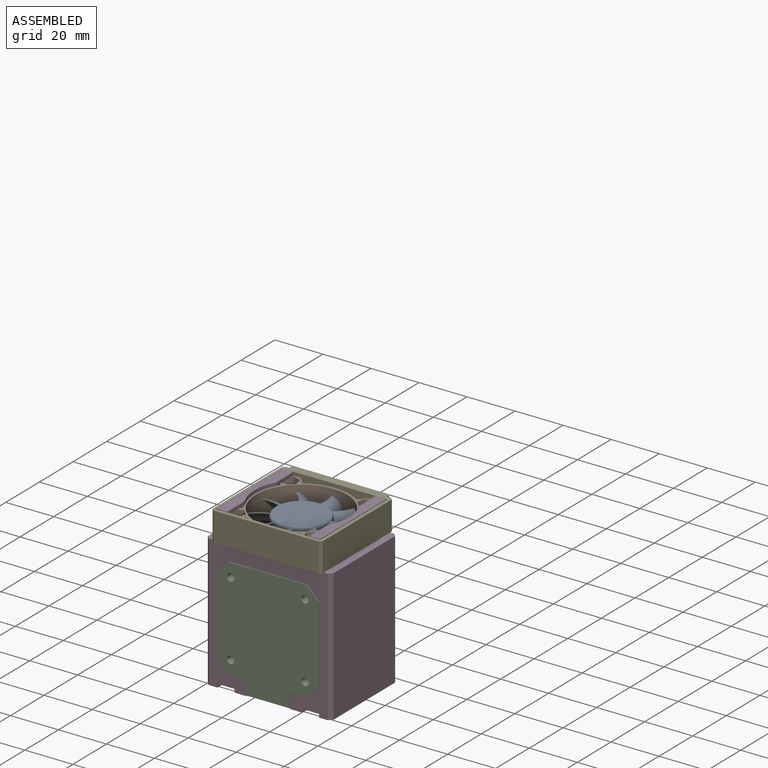
[diagram: assembled view]
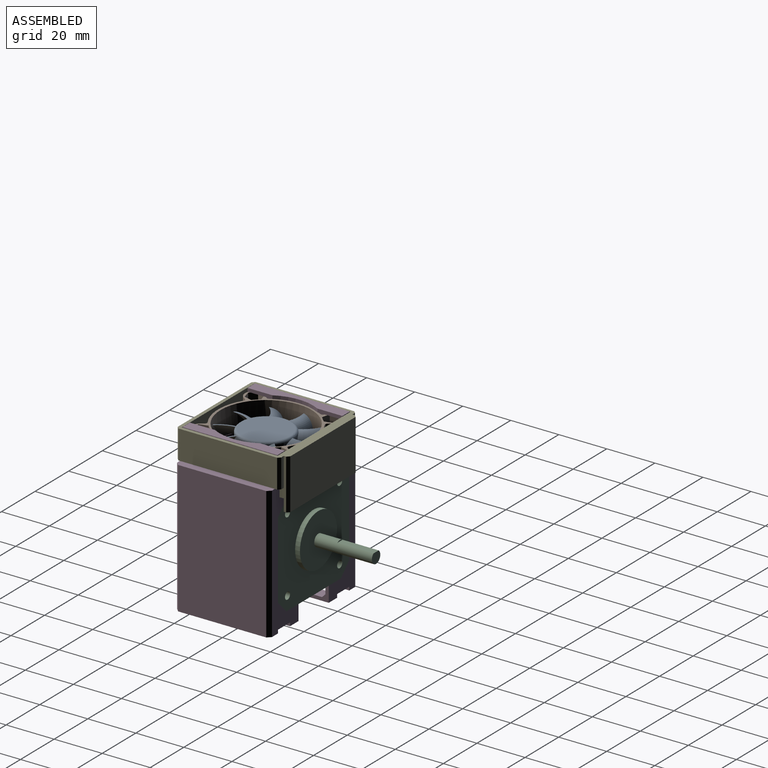
[diagram: assembled view, second angle]
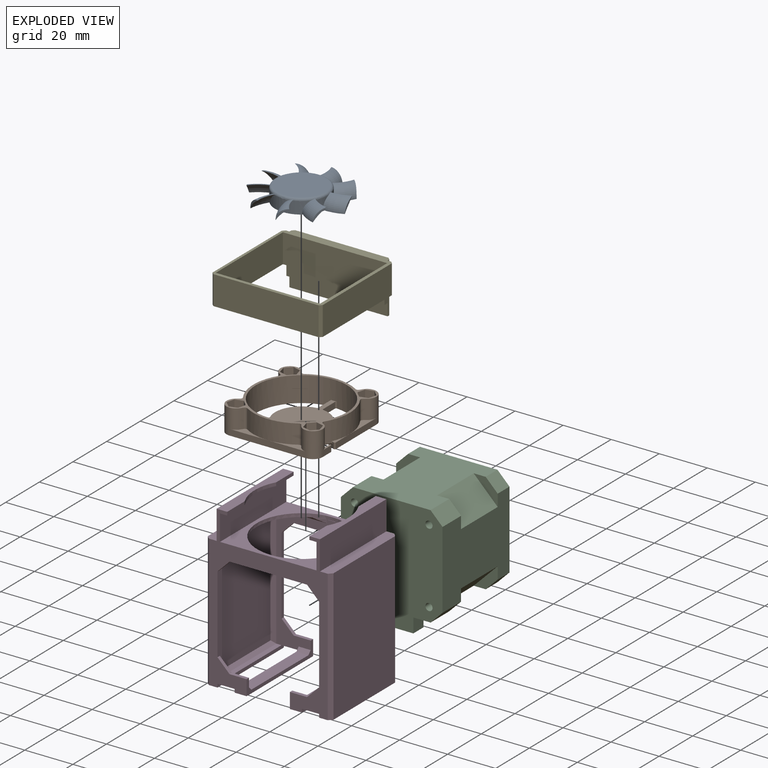
[diagram: exploded view]
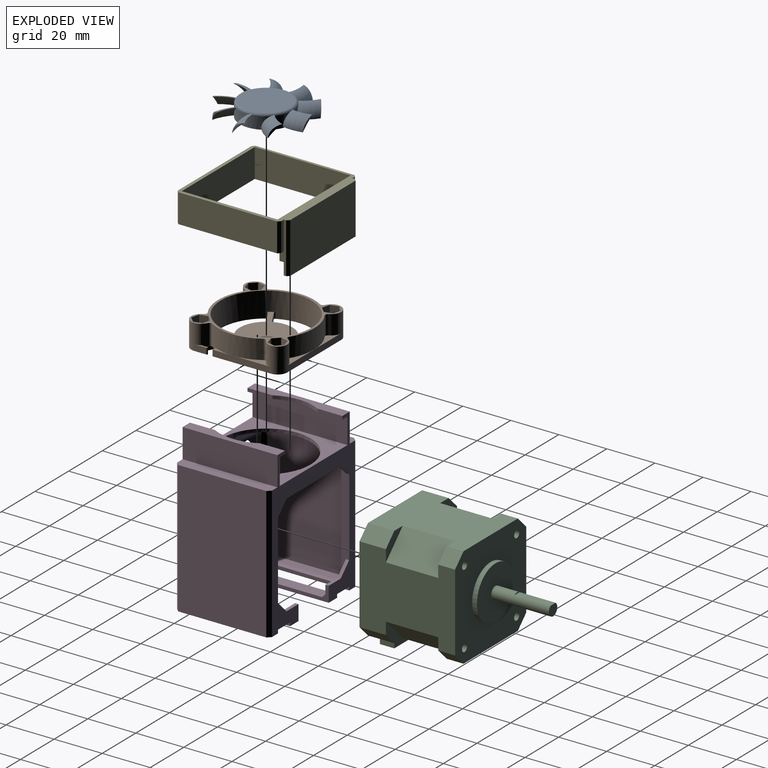
[diagram: exploded view, second angle]
ASSEMBLY  parts=5 mates=4
PART A: 32 faces, bbox 42.3x42.5x6 mm
  f0: cylinder r=11mm len=22mm, axis (0,0,-1), area 307.6mm2, adj f1,f3,f4,f5,f6,f8,f9,f11
  f1: cylinder r=11mm len=4.52mm, axis (0,0,-1), area 3.9mm2, adj f0,f4,f11
  f2: plane 20x20mm, normal (0,0,1), area 314.2mm2, adj f4
  f3: plane 22x22mm, normal (0,0,-1), area 380.1mm2, adj f0
  f4: torus R=10mm, axis (0,0,1), area 102.2mm2, adj f0,f1,f2,f5,f6,f8,f9,f11
  f5: torus R=12.73mm, axis (0,0,-1), area 60.3mm2, adj f0,f4,f6,f7
  f6: torus R=5.4mm, axis (0,0,-1), area 55.4mm2, adj f0,f4,f5,f7
  f7: cylinder r=18.8mm len=4.97mm, axis (0,0,1), area 4.5mm2, adj f5,f6
  f8: torus R=12.73mm, axis (0,0,-1), area 60.3mm2, adj f0,f4,f9,f10
  f9: torus R=5.4mm, axis (0,0,-1), area 55.4mm2, adj f0,f4,f8,f10
  f10: cylinder r=18.8mm len=4.97mm, axis (0,0,1), area 4.5mm2, adj f8,f9
  f11: torus R=12.73mm, axis (0,0,-1), area 60.3mm2, adj f0,f1,f4,f12,f13
  f12: torus R=5.4mm, axis (0,0,-1), area 55.4mm2, adj f0,f4,f11,f13
  f13: cylinder r=18.8mm len=4.97mm, axis (0,0,1), area 4.5mm2, adj f11,f12
  f14: torus R=12.73mm, axis (0,0,-1), area 60.3mm2, adj f0,f4,f15,f16
  f15: torus R=5.4mm, axis (0,0,-1), area 55.4mm2, adj f0,f4,f14,f16
  f16: cylinder r=18.8mm len=4.97mm, axis (0,0,1), area 4.5mm2, adj f14,f15
  f17: torus R=12.73mm, axis (0,0,-1), area 60.3mm2, adj f0,f4,f18,f19
  f18: torus R=5.4mm, axis (0,0,-1), area 55.4mm2, adj f0,f4,f17,f19
  f19: cylinder r=18.8mm len=4.97mm, axis (0,0,1), area 4.5mm2, adj f17,f18
  f20: torus R=12.73mm, axis (0,0,-1), area 60.3mm2, adj f0,f4,f21,f22
  f21: torus R=5.4mm, axis (0,0,-1), area 55.4mm2, adj f0,f4,f20,f22
  f22: cylinder r=18.8mm len=4.99mm, axis (0,0,1), area 4.5mm2, adj f20,f21
  f23: torus R=12.73mm, axis (0,0,-1), area 60.3mm2, adj f0,f4,f24,f25
  f24: torus R=5.4mm, axis (0,0,-1), area 55.4mm2, adj f0,f4,f23,f25
  f25: cylinder r=18.8mm len=4.97mm, axis (0,0,1), area 4.5mm2, adj f23,f24
  f26: torus R=12.73mm, axis (0,0,-1), area 60.3mm2, adj f0,f4,f27,f28
  f27: torus R=5.4mm, axis (0,0,-1), area 55.4mm2, adj f0,f4,f26,f28
  f28: cylinder r=18.8mm len=5mm, axis (0,0,1), area 4.5mm2, adj f26,f27
  f29: torus R=12.73mm, axis (0,0,-1), area 60.3mm2, adj f0,f4,f30,f31
  f30: torus R=5.4mm, axis (0,0,-1), area 55.4mm2, adj f0,f4,f29,f31
  f31: cylinder r=18.8mm len=4.97mm, axis (0,0,1), area 4.5mm2, adj f29,f30
PART B: 115 faces, bbox 40x40x10.5 mm
  f0: plane 10.28x5.94mm, normal (0.5,0.87,0), area 17.8mm2, adj f19,f33,f35,f80,f81,f82
  f1: plane 2.5x1.78mm, normal (-1,0,0), area 4.5mm2, adj f8,f33,f81,f97
  f2: plane 16x3.21mm, normal (0,0,1), area 18mm2, adj f26,f27,f56,f57,f100
  f3: plane 16x3.21mm, normal (0,0,1), area 18mm2, adj f25,f26,f65,f69,f106
  f4: plane 16x3.21mm, normal (0,0,1), area 18mm2, adj f21,f22,f34,f60,f102
  f5: plane 16x3.21mm, normal (0,0,1), area 18mm2, adj f23,f24,f62,f63,f104
  f6: plane 16x3.21mm, normal (0,0,1), area 18mm2, adj f27,f28,f57,f58,f101
  f7: plane 35.04x31.24mm, normal (0,0,1), area 457.1mm2, adj f12,f13,f14,f15,f16,f17,f18,f30
  f8: plane 5.45x1.07mm, normal (0,0,1), area 3mm2, adj f1,f28,f29,f81,f96,f97
  f9: plane 16x3.21mm, normal (0,0,1), area 18mm2, adj f22,f23,f61,f62,f103
  f10: plane 8.58x1.89mm, normal (0,0,1), area 5.1mm2, adj f20,f21,f34,f76,f89
  f11: plane 16x3.21mm, normal (0,0,1), area 18mm2, adj f24,f25,f64,f65,f105
  f12: plane 7.04x2.5mm, normal (1,0,0), area 17.6mm2, adj f7,f33,f87,f92
  f13: cylinder r=19mm len=38mm, axis (0,0,1), area 1221.3mm2, adj f7,f33,f71,f83,f84,f85,f86,f87
  f14: plane 6.22x3.59mm, normal (0.5,0.87,0), area 18mm2, adj f7,f33,f88,f95
  f15: plane 6.09x3.52mm, normal (0.5,-0.87,0), area 17.6mm2, adj f7,f33,f84,f90
  f16: cylinder r=11mm len=16.31mm, axis (0,0,1), area 46.1mm2, adj f7,f33,f90,f94
  f17: plane 6.09x3.52mm, normal (-0.5,0.87,0), area 17.6mm2, adj f7,f33,f85,f91
  f18: plane 7.04x2.5mm, normal (-1,0,0), area 17.6mm2, adj f7,f33,f86,f93
  f19: cylinder r=11mm len=3.9mm, axis (0,0,1), area 6.7mm2, adj f0,f20,f33,f35,f77
  f20: plane 8.8x5.08mm, normal (-0.5,-0.87,0), area 11.1mm2, adj f10,f19,f33,f76,f77,f78,f89
  f21: plane 24.08x2.5mm, normal (1,0,0), area 60.2mm2, adj f4,f10,f22,f33,f89
  f22: cylinder r=4mm len=10.5mm, axis (0,0,1), area 127.6mm2, adj f4,f9,f21,f23,f33,f60,f61,f71
  f23: plane 32x2.5mm, normal (0,1,0), area 80mm2, adj f5,f9,f22,f24,f33
  f24: cylinder r=4mm len=10.5mm, axis (0,0,1), area 127.6mm2, adj f5,f11,f23,f25,f33,f63,f64,f71
  f25: plane 32x2.5mm, normal (-1,0,0), area 80mm2, adj f3,f11,f24,f26,f33
  f26: cylinder r=4mm len=10.5mm, axis (0,0,1), area 127.6mm2, adj f2,f3,f25,f27,f33,f56,f69,f71
  f27: plane 32x2.5mm, normal (0,-1,0), area 80mm2, adj f2,f6,f26,f28,f33
  f28: cylinder r=4mm len=10.5mm, axis (0,0,1), area 128mm2, adj f6,f8,f27,f29,f33,f58,f59,f71
  f29: plane 4.96x2.5mm, normal (1,0,0), area 12.4mm2, adj f8,f28,f33,f96
  f30: plane 6.22x3.59mm, normal (-0.5,-0.87,0), area 18mm2, adj f7,f33,f83,f94
  f31: cylinder r=11mm len=15.12mm, axis (0,0,1), area 50.4mm2, adj f7,f33,f91,f93
  f32: cylinder r=11mm len=13.49mm, axis (0,0,1), area 46.1mm2, adj f7,f33,f92,f95
  f33: plane 40x40mm, normal (0,0,-1), area 793.4mm2, adj f0,f1,f12,f13,f14,f15,f16,f17
  f34: cylinder r=20mm len=21.25mm, axis (0,0,1), area 180.4mm2, adj f4,f10,f71,f76,f79,f98,f102
  f35: plane 9.49x8.4mm, normal (0,0,-1), area 34.2mm2, adj f0,f19,f77,f79,f80
  f36: plane 3.35x3mm, normal (-0.26,-0.97,0), area 10.4mm2, adj f37,f70,f71,f75
  f37: plane 3.35x3mm, normal (-0.97,-0.26,0), area 10.4mm2, adj f36,f38,f71,f75
  f38: plane 3x2.45mm, normal (-0.71,0.71,0), area 10.4mm2, adj f37,f39,f71,f75
  f39: plane 3.35x3mm, normal (0.26,0.97,0), area 10.4mm2, adj f38,f40,f71,f75
  f40: plane 3.35x3mm, normal (0.97,0.26,0), area 10.4mm2, adj f39,f70,f71,f75
  f41: plane 3x2.45mm, normal (-0.71,0.71,0), area 10.4mm2, adj f42,f66,f71,f73
  f42: plane 3.35x3mm, normal (0.26,0.97,0), area 10.4mm2, adj f41,f43,f71,f73
  f43: plane 3.35x3mm, normal (0.97,0.26,0), area 10.4mm2, adj f42,f44,f71,f73
  f44: plane 3x2.45mm, normal (0.71,-0.71,0), area 10.4mm2, adj f43,f45,f71,f73
  f45: plane 3.35x3mm, normal (-0.26,-0.97,0), area 10.4mm2, adj f44,f66,f71,f73
  f46: plane 3.35x3mm, normal (-0.97,0.26,0), area 10.4mm2, adj f47,f67,f71,f72
  f47: plane 3.35x3mm, normal (-0.26,0.97,0), area 10.4mm2, adj f46,f48,f71,f72
  f48: plane 3x2.45mm, normal (0.71,0.71,0), area 10.4mm2, adj f47,f49,f71,f72
  f49: plane 3.35x3mm, normal (0.97,-0.26,0), area 10.4mm2, adj f48,f50,f71,f72
  f50: plane 3.35x3mm, normal (0.26,-0.97,0), area 10.4mm2, adj f49,f67,f71,f72
  f51: plane 3x2.45mm, normal (-0.71,-0.71,0), area 10.4mm2, adj f52,f68,f71,f74
  f52: plane 3.35x3mm, normal (-0.97,0.26,0), area 10.4mm2, adj f51,f53,f71,f74
  f53: plane 3.35x3mm, normal (-0.26,0.97,0), area 10.4mm2, adj f52,f54,f71,f74
  f54: plane 3x2.45mm, normal (0.71,0.71,0), area 10.4mm2, adj f53,f55,f71,f74
  f55: plane 3.35x3mm, normal (0.97,-0.26,0), area 10.4mm2, adj f54,f68,f71,f74
  f56: plane 8x1.06mm, normal (0.82,-0.57,0), area 10.4mm2, adj f2,f26,f71,f100
  f57: cylinder r=20mm len=21.25mm, axis (0,0,-1), area 179.2mm2, adj f2,f6,f71,f100,f101
  f58: plane 8x1.06mm, normal (-0.82,-0.57,0), area 10.4mm2, adj f6,f28,f71,f101
  f59: plane 8.5x1.06mm, normal (0.57,0.82,0), area 11mm2, adj f28,f71,f80,f98
  f60: plane 8x1.06mm, normal (0.57,-0.82,0), area 10.4mm2, adj f4,f22,f71,f102
  f61: plane 8x1.06mm, normal (-0.82,0.57,0), area 10.4mm2, adj f9,f22,f71,f103
  f62: cylinder r=20mm len=21.25mm, axis (0,0,-1), area 179.2mm2, adj f5,f9,f71,f103,f104
  f63: plane 8x1.06mm, normal (0.82,0.57,0), area 10.4mm2, adj f5,f24,f71,f104
  f64: plane 8x1.06mm, normal (-0.57,-0.82,0), area 10.4mm2, adj f11,f24,f71,f105
  f65: cylinder r=20mm len=21.25mm, axis (0,0,-1), area 179.2mm2, adj f3,f11,f71,f105,f106
  f66: plane 3.35x3mm, normal (-0.97,-0.26,0), area 10.4mm2, adj f41,f45,f71,f73
  f67: plane 3x2.45mm, normal (-0.71,-0.71,0), area 10.4mm2, adj f46,f50,f71,f72
  f68: plane 3.35x3mm, normal (0.26,-0.97,0), area 10.4mm2, adj f51,f55,f71,f74
  f69: plane 8x1.06mm, normal (-0.57,0.82,0), area 10.4mm2, adj f3,f26,f71,f106
  f70: plane 3x2.45mm, normal (0.71,-0.71,0), area 10.4mm2, adj f36,f40,f71,f75
  f71: plane 40x40mm, normal (0,0,1), area 183.3mm2, adj f13,f22,f24,f26,f28,f34,f36,f37
  f72: plane 6.69x6.69mm, normal (0,0,1), area 22.1mm2, adj f46,f47,f48,f49,f50,f67,f111
  f73: plane 6.69x6.69mm, normal (0,0,1), area 22.1mm2, adj f41,f42,f43,f44,f45,f66,f109
  f74: plane 6.69x6.69mm, normal (0,0,1), area 22.1mm2, adj f51,f52,f53,f54,f55,f68,f107
  f75: plane 6.69x6.69mm, normal (0,0,1), area 22.1mm2, adj f36,f37,f38,f39,f40,f70,f113
  f76: cylinder r=0.5mm len=0.7mm, axis (0,0,1), area 0.4mm2, adj f10,f20,f34,f78
  f77: cylinder r=0.5mm len=7.74mm, axis (0.87,-0.5,0), area 6.8mm2, adj f19,f20,f35,f78
  f78: bspline ~1.22x1.19mm, area 0.9mm2, adj f20,f76,f77,f79
  f79: torus R=19.5mm, axis (0,0,1), area 2.5mm2, adj f34,f35,f78,f99
  f80: cylinder r=0.5mm len=2.57mm, axis (0.82,-0.57,0), area 1.5mm2, adj f0,f35,f59,f82,f99
  f81: cylinder r=0.5mm len=2.5mm, axis (0,0,-1), area 2.3mm2, adj f0,f1,f8,f28,f33,f82
  f82: torus R=3.5mm, axis (0,0,1), area 0.4mm2, adj f0,f28,f80,f81
  f83: cylinder r=0.5mm len=2.5mm, axis (0,0,1), area 2.2mm2, adj f7,f13,f30,f33
  f84: cylinder r=0.5mm len=2.5mm, axis (0,0,1), area 2.1mm2, adj f7,f13,f15,f33
  f85: cylinder r=0.5mm len=2.5mm, axis (0,0,1), area 2.1mm2, adj f7,f13,f17,f33
  f86: cylinder r=0.5mm len=2.5mm, axis (0,0,1), area 2.1mm2, adj f7,f13,f18,f33
  f87: cylinder r=0.5mm len=2.5mm, axis (0,0,1), area 2.1mm2, adj f7,f12,f13,f33
  f88: cylinder r=0.5mm len=2.5mm, axis (0,0,1), area 2.2mm2, adj f7,f13,f14,f33
  f89: cylinder r=0.5mm len=2.5mm, axis (0,0,-1), area 2.6mm2, adj f10,f20,f21,f33
  f90: cylinder r=0.5mm len=2.5mm, axis (0,0,1), area 1.8mm2, adj f7,f15,f16,f33
  f91: cylinder r=0.5mm len=2.5mm, axis (0,0,1), area 1.8mm2, adj f7,f17,f31,f33
  f92: cylinder r=0.5mm len=2.5mm, axis (0,0,1), area 1.8mm2, adj f7,f12,f32,f33
  f93: cylinder r=0.5mm len=2.5mm, axis (0,0,1), area 1.8mm2, adj f7,f18,f31,f33
  f94: cylinder r=0.5mm len=2.5mm, axis (0,0,1), area 1.6mm2, adj f7,f16,f30,f33
  f95: cylinder r=0.5mm len=2.5mm, axis (0,0,1), area 1.6mm2, adj f7,f14,f32,f33
  f96: cylinder r=0.5mm len=2.5mm, axis (0,0,1), area 1.7mm2, adj f8,f29,f33,f97
  f97: cylinder r=0.5mm len=2.5mm, axis (0,0,1), area 1.7mm2, adj f1,f8,f33,f96
  f98: cylinder r=1mm len=8.5mm, axis (0,0,1), area 12.9mm2, adj f34,f59,f71,f99
  f99: bspline ~1.5x1.35mm, area 0.5mm2, adj f79,f80,f98
  f100: cylinder r=1mm len=8mm, axis (0,0,-1), area 12.2mm2, adj f2,f56,f57,f71
  f101: cylinder r=1mm len=8mm, axis (0,0,-1), area 12.2mm2, adj f6,f57,f58,f71
  f102: cylinder r=1mm len=8mm, axis (0,0,1), area 12.2mm2, adj f4,f34,f60,f71
  f103: cylinder r=1mm len=8mm, axis (0,0,-1), area 12.2mm2, adj f9,f61,f62,f71
  f104: cylinder r=1mm len=8mm, axis (0,0,-1), area 12.2mm2, adj f5,f62,f63,f71
  f105: cylinder r=1mm len=8mm, axis (0,0,-1), area 12.2mm2, adj f11,f64,f65,f71
  f106: cylinder r=1mm len=8mm, axis (0,0,-1), area 12.2mm2, adj f3,f65,f69,f71
  f107: cylinder r=1.7mm len=6.95mm, axis (0,0,-1), area 74.2mm2, adj f74,f108
  f108: cone r=1.7mm half-angle=45deg, axis (0,0,-1), area 9.7mm2, adj f33,f107
  f109: cylinder r=1.7mm len=6.95mm, axis (0,0,-1), area 74.2mm2, adj f73,f110
  f110: cone r=1.7mm half-angle=45deg, axis (0,0,-1), area 9.7mm2, adj f33,f109
  f111: cylinder r=1.7mm len=6.95mm, axis (0,0,-1), area 74.2mm2, adj f72,f112
  f112: cone r=1.7mm half-angle=45deg, axis (0,0,-1), area 9.7mm2, adj f33,f111
  f113: cylinder r=1.7mm len=6.95mm, axis (0,0,-1), area 74.2mm2, adj f75,f114
  f114: cone r=1.7mm half-angle=45deg, axis (0,0,-1), area 9.7mm2, adj f33,f113
PART C: 52 faces, bbox 42.3x65.8x48.3 mm
  f0: plane 39.8x32.3mm, normal (0,0,-1), area 959.5mm2, adj f4,f7,f8,f9,f16,f17,f18,f31
  f1: plane 39.8x32.3mm, normal (1,0,0), area 1067.5mm2, adj f6,f7,f9,f10,f16,f18,f19,f33
  f2: plane 39.8x32.3mm, normal (-1,0,0), area 1067.5mm2, adj f4,f5,f8,f11,f16,f17,f20,f31
  f3: plane 39.8x32.3mm, normal (0,0,1), area 1067.5mm2, adj f5,f6,f10,f11,f16,f19,f20,f32
  f4: plane 21.8x10mm, normal (-0.71,0,-0.71), area 308.3mm2, adj f0,f2,f8,f31
  f5: plane 21.8x10mm, normal (-0.71,0,0.71), area 308.3mm2, adj f2,f3,f11,f32
  f6: plane 21.8x10mm, normal (0.71,0,0.71), area 308.3mm2, adj f1,f3,f10,f33
  f7: plane 21.8x10mm, normal (0.71,0,-0.71), area 308.3mm2, adj f0,f1,f9,f34
  f8: plane 10x10mm, normal (0,1,0), area 37.5mm2, adj f0,f2,f4,f17
  f9: plane 10x10mm, normal (0,1,0), area 37.5mm2, adj f0,f1,f7,f18
  f10: plane 10x10mm, normal (0,1,0), area 37.5mm2, adj f1,f3,f6,f19
  f11: plane 10x10mm, normal (0,1,0), area 37.5mm2, adj f2,f3,f5,f20
  f12: cylinder r=2.5mm len=24mm, axis (0,1,0), area 328.7mm2, adj f13,f14,f15,f22
  f13: plane 5x4.5mm, normal (0,-1,0), area 18.6mm2, adj f12,f14
  f14: plane 15x3mm, normal (0,0,1), area 45mm2, adj f12,f13,f15
  f15: plane 3x0.5mm, normal (0,-1,0), area 1mm2, adj f12,f14
  f16: plane 42.3x42.3mm, normal (0,-1,0), area 1330.9mm2, adj f0,f1,f2,f3,f17,f18,f19,f20
  f17: plane 7x5mm, normal (-0.71,0,-0.71), area 49.5mm2, adj f0,f2,f8,f16
  f18: plane 7x5mm, normal (0.71,0,-0.71), area 49.5mm2, adj f0,f1,f9,f16
  f19: plane 7x5mm, normal (0.71,0,0.71), area 49.5mm2, adj f1,f3,f10,f16
  f20: plane 7x5mm, normal (-0.71,0,0.71), area 49.5mm2, adj f2,f3,f11,f16
  f21: cylinder r=11mm len=22mm, axis (0,1,0), area 138.2mm2, adj f16,f22
  f22: plane 22x22mm, normal (0,-1,0), area 360.5mm2, adj f12,f21
  f23: cylinder r=1.5mm len=4.5mm, axis (0,-1,0), area 42.4mm2, adj f16,f24
  f24: plane 3x3mm, normal (0,-1,0), area 7.1mm2, adj f23
  f25: cylinder r=1.5mm len=4.5mm, axis (0,-1,0), area 42.4mm2, adj f16,f26
  f26: plane 3x3mm, normal (0,-1,0), area 7.1mm2, adj f25
  f27: cylinder r=1.5mm len=4.5mm, axis (0,-1,0), area 42.4mm2, adj f16,f28
  f28: plane 3x3mm, normal (0,-1,0), area 7.1mm2, adj f27
  f29: cylinder r=1.5mm len=4.5mm, axis (0,-1,0), area 42.4mm2, adj f16,f30
  f30: plane 3x3mm, normal (0,-1,0), area 7.1mm2, adj f29
  f31: plane 10x10mm, normal (0,-1,0), area 37.5mm2, adj f0,f2,f4,f37
  f32: plane 10x10mm, normal (0,-1,0), area 37.5mm2, adj f2,f3,f5,f36
  f33: plane 10x10mm, normal (0,-1,0), area 37.5mm2, adj f1,f3,f6,f39
  f34: plane 10x10mm, normal (0,-1,0), area 37.5mm2, adj f0,f1,f7,f38
  f35: plane 48.3x42.3mm, normal (0,1,0), area 1819mm2, adj f0,f1,f2,f3,f36,f37,f38,f39
  f36: plane 11x5mm, normal (-0.71,0,0.71), area 77.8mm2, adj f2,f3,f32,f35
  f37: plane 11x5mm, normal (-0.71,0,-0.71), area 77.8mm2, adj f0,f2,f31,f35
  f38: plane 11x5mm, normal (0.71,0,-0.71), area 77.8mm2, adj f0,f1,f34,f35
  f39: plane 11x5mm, normal (0.71,0,0.71), area 77.8mm2, adj f1,f3,f33,f35
  f40: cylinder r=1.5mm len=4.5mm, axis (0,1,0), area 42.4mm2, adj f35,f41
  f41: plane 3x3mm, normal (0,1,0), area 7.1mm2, adj f40
  f42: cylinder r=1.5mm len=4.5mm, axis (0,1,0), area 42.4mm2, adj f35,f43
  f43: plane 3x3mm, normal (0,1,0), area 7.1mm2, adj f42
  f44: cylinder r=1.5mm len=4.5mm, axis (0,1,0), area 42.4mm2, adj f35,f45
  f45: plane 3x3mm, normal (0,1,0), area 7.1mm2, adj f44
  f46: cylinder r=1.5mm len=4.5mm, axis (0,1,0), area 42.4mm2, adj f35,f47
  f47: plane 3x3mm, normal (0,1,0), area 7.1mm2, adj f46
  f48: plane 6x6mm, normal (1,0,0), area 36mm2, adj f0,f35,f49,f51
  f49: plane 18x6mm, normal (0,0,-1), area 108mm2, adj f35,f48,f50,f51
  f50: plane 6x6mm, normal (-1,0,0), area 36mm2, adj f0,f35,f49,f51
  f51: plane 18x6mm, normal (0,-1,0), area 108mm2, adj f0,f48,f49,f50
PART D: 96 faces, bbox 52.3x67.2x39.5 mm
  f0: plane 7.15x1.4mm, normal (0,-1,0), area 10mm2, adj f31,f33,f61,f64
  f1: plane 7.15x1.4mm, normal (0,-1,0), area 10mm2, adj f32,f34,f61,f64
  f2: plane 7.15x1.4mm, normal (0,-1,0), area 10mm2, adj f31,f33,f55,f58
  f3: plane 7.15x1.4mm, normal (0,-1,0), area 10mm2, adj f32,f34,f55,f58
  f4: plane 33.9x15.94mm, normal (0,-1,0), area 269.4mm2, adj f50,f66,f70,f71
  f5: plane 10.38x1.4mm, normal (-1,0,0), area 14.5mm2, adj f32,f40,f41,f53
  f6: plane 10.38x1.4mm, normal (-1,0,0), area 14.5mm2, adj f31,f40,f41,f53
  f7: plane 10.38x1.4mm, normal (1,0,0), area 14.5mm2, adj f32,f45,f46,f49
  f8: plane 10.38x1.4mm, normal (1,0,0), area 14.5mm2, adj f31,f45,f46,f49
  f9: plane 7.13x1.4mm, normal (0,1,0), area 10mm2, adj f10,f20,f31,f33
  f10: plane 5.02x5.02mm, normal (0.71,0.71,0), area 9.9mm2, adj f9,f11,f31,f33
  f11: plane 32.26x1.4mm, normal (1,0,0), area 45.2mm2, adj f10,f12,f31,f33
  f12: plane 5.02x5.02mm, normal (0.71,-0.71,0), area 9.9mm2, adj f11,f13,f31,f33
  f13: plane 32.26x1.4mm, normal (0,-1,0), area 45.2mm2, adj f12,f14,f31,f33
  f14: plane 5.02x5.02mm, normal (-0.71,-0.71,0), area 9.9mm2, adj f13,f15,f31,f33
  f15: plane 32.26x1.4mm, normal (-1,0,0), area 45.2mm2, adj f14,f16,f31,f33
  f16: plane 5.02x5.02mm, normal (-0.71,0.71,0), area 9.9mm2, adj f15,f17,f31,f33
  f17: plane 7.13x1.4mm, normal (0,1,0), area 10mm2, adj f16,f30,f31,f33
  f18: plane 55.1x36.7mm, normal (1,0,0), area 2022.2mm2, adj f38,f59,f92,f93
  f19: plane 55.1x36.7mm, normal (-1,0,0), area 2022.2mm2, adj f48,f62,f94,f95
  f20: plane 39.5x6.4mm, normal (1,0,0), area 71.3mm2, adj f9,f21,f31,f32,f33,f34,f63,f65
  f21: plane 7.13x1.4mm, normal (0,1,0), area 10mm2, adj f20,f22,f32,f34
  f22: plane 5.02x5.02mm, normal (0.71,0.71,0), area 9.9mm2, adj f21,f23,f32,f34
  f23: plane 32.26x1.4mm, normal (1,0,0), area 45.2mm2, adj f22,f24,f32,f34
  f24: plane 5.02x5.02mm, normal (0.71,-0.71,0), area 9.9mm2, adj f23,f25,f32,f34
  f25: plane 32.26x1.4mm, normal (0,-1,0), area 45.2mm2, adj f24,f26,f32,f34
  f26: plane 5.02x5.02mm, normal (-0.71,-0.71,0), area 9.9mm2, adj f25,f27,f32,f34
  f27: plane 32.26x1.4mm, normal (-1,0,0), area 45.2mm2, adj f26,f28,f32,f34
  f28: plane 5.02x5.02mm, normal (-0.71,0.71,0), area 9.9mm2, adj f27,f29,f32,f34
  f29: plane 7.13x1.4mm, normal (0,1,0), area 10mm2, adj f28,f30,f32,f34
  f30: plane 39.5x6.4mm, normal (-1,0,0), area 71.3mm2, adj f17,f29,f31,f32,f33,f34,f54,f56
  f31: plane 67.2x49.5mm, normal (0,0,1), area 895.6mm2, adj f0,f2,f6,f8,f9,f10,f11,f12
  f32: plane 67.2x49.5mm, normal (0,0,-1), area 895.6mm2, adj f1,f3,f5,f7,f20,f21,f22,f23
  f33: plane 52.3x46.7mm, normal (0,0,-1), area 534.6mm2, adj f0,f2,f9,f10,f11,f12,f13,f14
  f34: plane 52.3x46.7mm, normal (0,0,1), area 537.7mm2, adj f1,f3,f20,f21,f22,f23,f24,f25
  f35: plane 49.5x33.9mm, normal (1,0,0), area 1678.1mm2, adj f82,f85,f86,f87
  f36: plane 49.5x33.9mm, normal (-1,0,0), area 1678.1mm2, adj f69,f70,f74,f75
  f37: plane 33.9x15.94mm, normal (0,-1,0), area 269.4mm2, adj f50,f80,f81,f82
  f38: plane 39.5x4.65mm, normal (0,1,0), area 181.7mm2, adj f18,f31,f32,f39,f92,f93
  f39: plane 39.5x12.1mm, normal (1,0,0), area 477.9mm2, adj f31,f32,f38,f40
  f40: plane 39.5x4.4mm, normal (0,1,0), area 143.4mm2, adj f5,f6,f31,f32,f39,f53
  f41: plane 39.5x3mm, normal (0,-1,0), area 88.1mm2, adj f5,f6,f31,f32,f42,f53
  f42: plane 39.5x10.7mm, normal (-1,0,0), area 422.6mm2, adj f31,f32,f41,f43
  f43: plane 40.2x39.5mm, normal (0,1,0), area 512.7mm2, adj f31,f32,f42,f44,f50
  f44: plane 39.5x10.7mm, normal (1,0,0), area 422.6mm2, adj f31,f32,f43,f45
  f45: plane 39.5x3mm, normal (0,-1,0), area 88.1mm2, adj f7,f8,f31,f32,f44,f49
  f46: plane 39.5x4.4mm, normal (0,1,0), area 143.4mm2, adj f7,f8,f31,f32,f47,f49
  f47: plane 39.5x12.1mm, normal (-1,0,0), area 477.9mm2, adj f31,f32,f46,f48
  f48: plane 39.5x4.65mm, normal (0,1,0), area 181.7mm2, adj f19,f31,f32,f47,f94,f95
  f49: cylinder r=19.5mm len=18.74mm, axis (0,-1,0), area 27.4mm2, adj f7,f8,f45,f46
  f50: cylinder r=18.5mm len=37mm, axis (0,-1,0), area 180mm2, adj f4,f33,f34,f37,f43,f51,f52,f66
  f51: plane 4.7x0.15mm, normal (0,1,0), area 0.5mm2, adj f34,f50
  f52: plane 4.7x0.15mm, normal (0,1,0), area 0.5mm2, adj f33,f50
  f53: cylinder r=19.5mm len=18.74mm, axis (0,-1,0), area 27.4mm2, adj f5,f6,f40,f41
  f54: plane 33.9x5mm, normal (0,1,0), area 169.5mm2, adj f30,f55,f78,f91
  f55: plane 39.5x2.8mm, normal (1,0,0), area 57.3mm2, adj f2,f3,f31,f32,f33,f34,f54,f56
  f56: plane 39.5x5mm, normal (0,-1,0), area 197.5mm2, adj f30,f31,f32,f55
  f57: plane 33.9x2.2mm, normal (0,1,0), area 74.6mm2, adj f58,f68,f74,f77
  f58: plane 39.5x2.8mm, normal (-1,0,0), area 57.3mm2, adj f2,f3,f31,f32,f33,f34,f57,f59
  f59: plane 39.5x5mm, normal (0,-1,0), area 195.5mm2, adj f18,f31,f32,f58,f92,f93
  f60: plane 35.3x2.2mm, normal (0,1,0), area 77.7mm2, adj f34,f61,f87,f89
  f61: plane 39.5x2.8mm, normal (1,0,0), area 56.3mm2, adj f0,f1,f31,f32,f33,f60,f62,f89
  f62: plane 39.5x5mm, normal (0,-1,0), area 195.5mm2, adj f19,f31,f32,f61,f94,f95
  f63: plane 33.9x5mm, normal (0,1,0), area 169.5mm2, adj f20,f64,f79,f90
  f64: plane 39.5x2.8mm, normal (-1,0,0), area 57.3mm2, adj f0,f1,f31,f32,f33,f34,f63,f65
  f65: plane 39.5x5mm, normal (0,-1,0), area 197.5mm2, adj f20,f31,f32,f64
  f66: plane 21x1.4mm, normal (0,-0.71,0.71), area 35.6mm2, adj f4,f34,f50,f67
  f67: plane 1.4x1.4mm, normal (-0.58,-0.58,0.58), area 1.7mm2, adj f66,f69,f70
  f68: plane 2.2x1.4mm, normal (0,0.71,0.71), area 4.4mm2, adj f34,f57,f58,f72
  f69: plane 49.5x1.4mm, normal (-0.71,0,0.71), area 98mm2, adj f34,f36,f67,f72
  f70: plane 33.9x1.4mm, normal (-0.71,-0.71,0), area 67.1mm2, adj f4,f36,f67,f73
  f71: plane 21x1.4mm, normal (0,-0.71,-0.71), area 35.6mm2, adj f4,f33,f50,f73
  f72: plane 1.4x1.4mm, normal (-0.58,0.58,0.58), area 1.7mm2, adj f68,f69,f74
  f73: plane 1.4x1.4mm, normal (-0.58,-0.58,-0.58), area 1.7mm2, adj f70,f71,f75
  f74: plane 33.9x1.4mm, normal (-0.71,0.71,0), area 67.1mm2, adj f36,f57,f72,f76
  f75: plane 49.5x1.4mm, normal (-0.71,0,-0.71), area 98mm2, adj f33,f36,f73,f76
  f76: plane 1.4x1.4mm, normal (-0.58,0.58,-0.58), area 1.7mm2, adj f74,f75,f77
  f77: plane 2.2x1.4mm, normal (0,0.71,-0.71), area 4.4mm2, adj f33,f57,f58,f76
  f78: plane 5x1.4mm, normal (0,0.71,-0.71), area 9.9mm2, adj f30,f33,f54,f55
  f79: plane 5x1.4mm, normal (0,0.71,-0.71), area 9.9mm2, adj f20,f33,f63,f64
  f80: plane 21x1.4mm, normal (0,-0.71,0.71), area 35.6mm2, adj f34,f37,f50,f83
  f81: plane 21x1.4mm, normal (0,-0.71,-0.71), area 35.6mm2, adj f33,f37,f50,f84
  f82: plane 33.9x1.4mm, normal (0.71,-0.71,0), area 67.1mm2, adj f35,f37,f83,f84
  f83: plane 1.4x1.4mm, normal (0.58,-0.58,0.58), area 1.7mm2, adj f80,f82,f85
  f84: plane 1.4x1.4mm, normal (0.58,-0.58,-0.58), area 1.7mm2, adj f81,f82,f86
  f85: plane 50.9x1.4mm, normal (0.71,0,0.71), area 99.4mm2, adj f34,f35,f83,f87
  f86: plane 49.5x1.4mm, normal (0.71,0,-0.71), area 98mm2, adj f33,f35,f84,f88
  f87: plane 35.3x1.4mm, normal (0.71,0.71,0), area 68.5mm2, adj f35,f60,f85,f88
  f88: plane 1.4x1.4mm, normal (0.58,0.58,-0.58), area 1.7mm2, adj f86,f87,f89
  f89: plane 2.2x1.4mm, normal (0,0.71,-0.71), area 4.4mm2, adj f33,f60,f61,f88
  f90: plane 5x1.4mm, normal (0,0.71,0.71), area 9.9mm2, adj f20,f34,f63,f64
  f91: plane 5x1.4mm, normal (0,0.71,0.71), area 9.9mm2, adj f30,f34,f54,f55
  f92: plane 55.1x1.4mm, normal (0.71,0,0.71), area 109.1mm2, adj f18,f31,f38,f59
  f93: plane 55.1x1.4mm, normal (0.71,0,-0.71), area 109.1mm2, adj f18,f32,f38,f59
  f94: plane 55.1x1.4mm, normal (-0.71,0,-0.71), area 109.1mm2, adj f19,f32,f48,f62
  f95: plane 55.1x1.4mm, normal (-0.71,0,0.71), area 109.1mm2, adj f19,f31,f48,f62
PART E: 23 faces, bbox 45.9x21x45.1 mm
  f0: plane 45.85x43.1mm, normal (0,-1,0), area 168.9mm2, adj f1,f2,f3,f4,f5,f6,f8,f9
  f1: plane 43.4x16mm, normal (0,0,1), area 684.2mm2, adj f0,f2,f6,f8,f12,f13,f14
  f2: plane 39.9x12mm, normal (-1,0,0), area 478.8mm2, adj f0,f1,f3,f13
  f3: plane 43.4x12mm, normal (0,0,-1), area 520.8mm2, adj f0,f2,f12,f13
  f4: plane 41.1x12mm, normal (1,0,0), area 493.2mm2, adj f0,f13,f20,f22
  f5: plane 12x1.5mm, normal (0,0,-1), area 18mm2, adj f0,f6,f13,f20
  f6: plane 21x2.8mm, normal (1,0,0), area 28.2mm2, adj f0,f1,f5,f13,f14,f15,f16,f19
  f7: plane 38.85x21mm, normal (0,0,-1), area 815.8mm2, adj f13,f16,f18,f19
  f8: plane 21x2.8mm, normal (-1,0,0), area 28.2mm2, adj f0,f1,f9,f13,f14,f15,f16,f18
  f9: plane 12x1.5mm, normal (0,0,-1), area 18mm2, adj f0,f8,f13,f17
  f10: plane 41.1x12mm, normal (-1,0,0), area 493.2mm2, adj f0,f13,f17,f21
  f11: plane 43.85x12mm, normal (0,0,1), area 526.2mm2, adj f0,f13,f21,f22
  f12: plane 39.9x12mm, normal (1,0,0), area 478.8mm2, adj f0,f1,f3,f13
  f13: plane 45.85x45.1mm, normal (0,1,0), area 323.2mm2, adj f1,f2,f3,f4,f5,f6,f7,f8
  f14: plane 40.85x1.8mm, normal (0,-1,0), area 73.5mm2, adj f1,f6,f8,f15
  f15: plane 40.85x5mm, normal (0,0,1), area 204.3mm2, adj f6,f8,f14,f16
  f16: plane 40.85x2mm, normal (0,-1,0), area 80.7mm2, adj f6,f7,f8,f15,f18,f19
  f17: plane 12x1mm, normal (-0.71,0,-0.71), area 17mm2, adj f0,f9,f10,f13
  f18: plane 21x1mm, normal (-0.71,0,-0.71), area 29.7mm2, adj f7,f8,f13,f16
  f19: plane 21x1mm, normal (0.71,0,-0.71), area 29.7mm2, adj f6,f7,f13,f16
  f20: plane 12x1mm, normal (0.71,0,-0.71), area 17mm2, adj f0,f4,f5,f13
  f21: plane 12x1mm, normal (-0.71,0,0.71), area 17mm2, adj f0,f10,f11,f13
  f22: plane 12x1mm, normal (0.71,0,0.71), area 17mm2, adj f0,f4,f11,f13
PLACE A t=(-51.95,55.89,42.5)mm
PLACE B t=(-51.95,55.89,43.5)mm
PLACE C rot(axis=(0,0,1),180deg) t=(-70.4,68.64,0.02)mm
PLACE D rot(axis=(1,0,0),90deg) t=(-51.95,75.64,13.45)mm
PLACE E rot(axis=(1,0,0),90deg) t=(-51.95,75.64,-23.65)mm
MATE fastened E.f0 <-> D.f49  axis (0,0,1) through (-51.95,55.89,41)mm
MATE fastened A.f0 <-> B.f13  axis (0,0,-1) through (-51.95,55.89,43.5)mm
MATE fastened C.f12 <-> D.f32  axis (0,1,0) through (-51.95,75.64,13.45)mm
MATE fastened B.f13 <-> D.f49  axis (0,0,1) through (-51.95,55.89,43.5)mm
